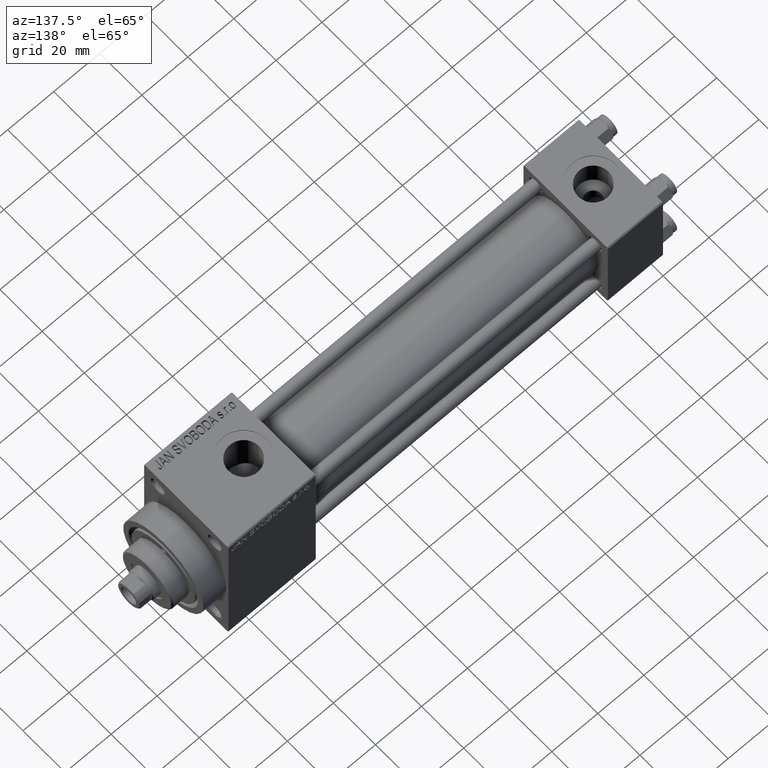
[diagram: clean part render]
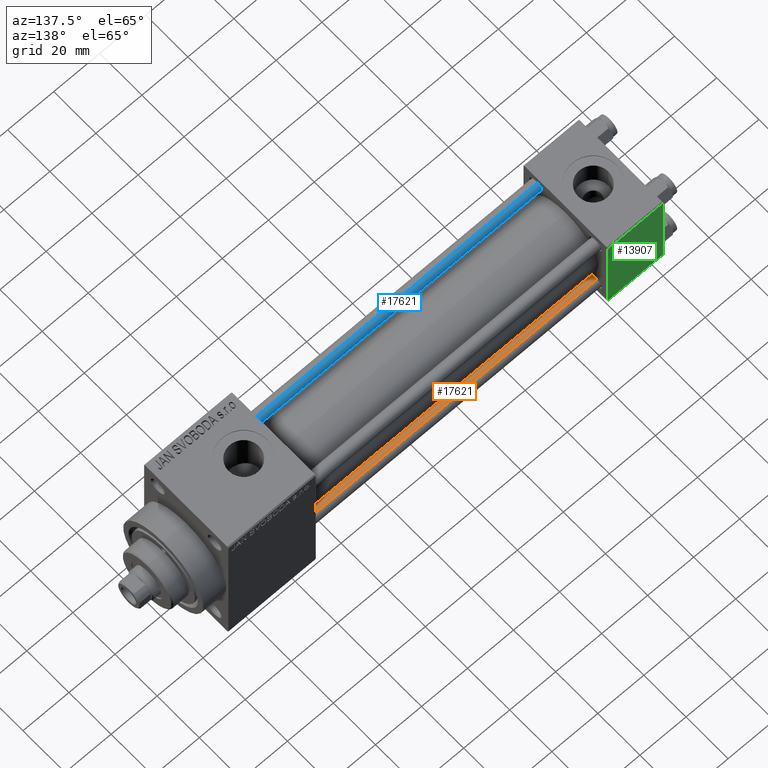
[diagram: same view with three faces highlighted in distinct colors, each labeled with its STEP entity id]
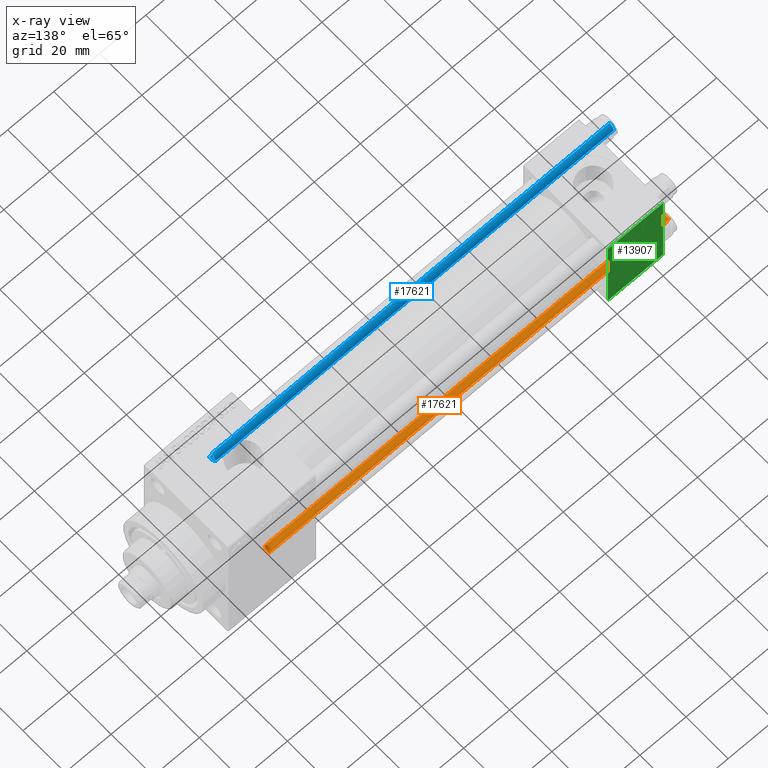
[diagram: x-ray of the same camera — body ghosted, the three highlighted faces saturated]
A machine part, auxiliary view with three faces highlighted in distinct colors.
The next image is the same camera in x-ray (body ghosted, the three faces saturated) — at least one of them is partly hidden behind the body in this view.
Their STEP definitions:

[orange] entity #17621 — the highlighted cylindrical surface (edge-blend (fillet) strip) has radius 2.5 mm, axis along (1, -0, 0).
#1886 = AXIS2_PLACEMENT_3D ( 'NONE', #28125, #10183, #2770 ) ;
#2770 = DIRECTION ( 'NONE',  ( -1.000000000000000000, 0.000000000000000000, 0.000000000000000000 ) ) ;
#3983 = EDGE_CURVE ( 'NONE', #21928, #24024, #14518, .T. ) ;
#7060 = FACE_OUTER_BOUND ( 'NONE', #7411, .T. ) ;
#7118 = CARTESIAN_POINT ( 'NONE',  ( 2.500000000000000000, 3.061616997868383141E-16, 174.0000000000000000 ) ) ;
#7411 = EDGE_LOOP ( 'NONE', ( #35165, #41956, #31544, #12046 ) ) ;
#9742 = VERTEX_POINT ( 'NONE', #47216 ) ;
#10094 = DIRECTION ( 'NONE',  ( -0.000000000000000000, -0.000000000000000000, 1.000000000000000000 ) ) ;
#10183 = DIRECTION ( 'NONE',  ( -0.000000000000000000, -0.000000000000000000, -1.000000000000000000 ) ) ;
#10185 = LINE ( 'NONE', #24777, #23042 ) ;
#12046 = ORIENTED_EDGE ( 'NONE', *, *, #38184, .T. ) ;
#12241 = CARTESIAN_POINT ( 'NONE',  ( 2.500000000000000000, 3.061616997868383141E-16, 173.5000000000000000 ) ) ;
#13673 = CARTESIAN_POINT ( 'NONE',  ( 0.000000000000000000, 0.000000000000000000, 0.5000000000000281997 ) ) ;
#13821 = DIRECTION ( 'NONE',  ( -0.000000000000000000, -0.000000000000000000, -1.000000000000000000 ) ) ;
#14518 = LINE ( 'NONE', #7118, #16044 ) ;
#15434 = DIRECTION ( 'NONE',  ( 1.000000000000000000, 0.000000000000000000, 0.000000000000000000 ) ) ;
#16044 = VECTOR ( 'NONE', #13821, 1000.000000000000000 ) ;
#17621 = ADVANCED_FACE ( 'NONE', ( #7060 ), #21662, .T. ) ;
#21662 = CYLINDRICAL_SURFACE ( 'NONE', #1886, 2.500000000000000000 ) ;
#21928 = VERTEX_POINT ( 'NONE', #12241 ) ;
#22539 = VERTEX_POINT ( 'NONE', #28621 ) ;
#23042 = VECTOR ( 'NONE', #39359, 1000.000000000000000 ) ;
#23546 = DIRECTION ( 'NONE',  ( 0.000000000000000000, 0.000000000000000000, -1.000000000000000000 ) ) ;
#24024 = VERTEX_POINT ( 'NONE', #24243 ) ;
#24243 = CARTESIAN_POINT ( 'NONE',  ( 2.500000000000000000, 3.061616997868383141E-16, 0.5000000000000281997 ) ) ;
#24616 = CIRCLE ( 'NONE', #33014, 2.500000000000000000 ) ;
#24777 = CARTESIAN_POINT ( 'NONE',  ( -2.500000000000000000, 0.000000000000000000, 174.0000000000000000 ) ) ;
#26882 = CIRCLE ( 'NONE', #30705, 2.500000000000000000 ) ;
#28125 = CARTESIAN_POINT ( 'NONE',  ( 0.000000000000000000, 0.000000000000000000, 174.0000000000000000 ) ) ;
#28621 = CARTESIAN_POINT ( 'NONE',  ( -2.500000000000000000, 0.000000000000000000, 0.5000000000000281997 ) ) ;
#30705 = AXIS2_PLACEMENT_3D ( 'NONE', #33618, #23546, #15434 ) ;
#31544 = ORIENTED_EDGE ( 'NONE', *, *, #33615, .T. ) ;
#33014 = AXIS2_PLACEMENT_3D ( 'NONE', #13673, #10094, #45966 ) ;
#33615 = EDGE_CURVE ( 'NONE', #9742, #22539, #10185, .T. ) ;
#33618 = CARTESIAN_POINT ( 'NONE',  ( 0.000000000000000000, 0.000000000000000000, 173.5000000000000000 ) ) ;
#35165 = ORIENTED_EDGE ( 'NONE', *, *, #3983, .F. ) ;
#37777 = EDGE_CURVE ( 'NONE', #21928, #9742, #26882, .T. ) ;
#38184 = EDGE_CURVE ( 'NONE', #22539, #24024, #24616, .T. ) ;
#39359 = DIRECTION ( 'NONE',  ( -0.000000000000000000, -0.000000000000000000, -1.000000000000000000 ) ) ;
#41956 = ORIENTED_EDGE ( 'NONE', *, *, #37777, .T. ) ;
#45966 = DIRECTION ( 'NONE',  ( 1.000000000000000000, 0.000000000000000000, 0.000000000000000000 ) ) ;
#47216 = CARTESIAN_POINT ( 'NONE',  ( -2.500000000000000000, 0.000000000000000000, 173.5000000000000000 ) ) ;

[blue] entity #17621 — the highlighted cylindrical surface (edge-blend (fillet) strip) has radius 2.5 mm, axis along (1, 0, 0).
#1886 = AXIS2_PLACEMENT_3D ( 'NONE', #28125, #10183, #2770 ) ;
#2770 = DIRECTION ( 'NONE',  ( -1.000000000000000000, 0.000000000000000000, 0.000000000000000000 ) ) ;
#3983 = EDGE_CURVE ( 'NONE', #21928, #24024, #14518, .T. ) ;
#7060 = FACE_OUTER_BOUND ( 'NONE', #7411, .T. ) ;
#7118 = CARTESIAN_POINT ( 'NONE',  ( 2.500000000000000000, 3.061616997868383141E-16, 174.0000000000000000 ) ) ;
#7411 = EDGE_LOOP ( 'NONE', ( #35165, #41956, #31544, #12046 ) ) ;
#9742 = VERTEX_POINT ( 'NONE', #47216 ) ;
#10094 = DIRECTION ( 'NONE',  ( -0.000000000000000000, -0.000000000000000000, 1.000000000000000000 ) ) ;
#10183 = DIRECTION ( 'NONE',  ( -0.000000000000000000, -0.000000000000000000, -1.000000000000000000 ) ) ;
#10185 = LINE ( 'NONE', #24777, #23042 ) ;
#12046 = ORIENTED_EDGE ( 'NONE', *, *, #38184, .T. ) ;
#12241 = CARTESIAN_POINT ( 'NONE',  ( 2.500000000000000000, 3.061616997868383141E-16, 173.5000000000000000 ) ) ;
#13673 = CARTESIAN_POINT ( 'NONE',  ( 0.000000000000000000, 0.000000000000000000, 0.5000000000000281997 ) ) ;
#13821 = DIRECTION ( 'NONE',  ( -0.000000000000000000, -0.000000000000000000, -1.000000000000000000 ) ) ;
#14518 = LINE ( 'NONE', #7118, #16044 ) ;
#15434 = DIRECTION ( 'NONE',  ( 1.000000000000000000, 0.000000000000000000, 0.000000000000000000 ) ) ;
#16044 = VECTOR ( 'NONE', #13821, 1000.000000000000000 ) ;
#17621 = ADVANCED_FACE ( 'NONE', ( #7060 ), #21662, .T. ) ;
#21662 = CYLINDRICAL_SURFACE ( 'NONE', #1886, 2.500000000000000000 ) ;
#21928 = VERTEX_POINT ( 'NONE', #12241 ) ;
#22539 = VERTEX_POINT ( 'NONE', #28621 ) ;
#23042 = VECTOR ( 'NONE', #39359, 1000.000000000000000 ) ;
#23546 = DIRECTION ( 'NONE',  ( 0.000000000000000000, 0.000000000000000000, -1.000000000000000000 ) ) ;
#24024 = VERTEX_POINT ( 'NONE', #24243 ) ;
#24243 = CARTESIAN_POINT ( 'NONE',  ( 2.500000000000000000, 3.061616997868383141E-16, 0.5000000000000281997 ) ) ;
#24616 = CIRCLE ( 'NONE', #33014, 2.500000000000000000 ) ;
#24777 = CARTESIAN_POINT ( 'NONE',  ( -2.500000000000000000, 0.000000000000000000, 174.0000000000000000 ) ) ;
#26882 = CIRCLE ( 'NONE', #30705, 2.500000000000000000 ) ;
#28125 = CARTESIAN_POINT ( 'NONE',  ( 0.000000000000000000, 0.000000000000000000, 174.0000000000000000 ) ) ;
#28621 = CARTESIAN_POINT ( 'NONE',  ( -2.500000000000000000, 0.000000000000000000, 0.5000000000000281997 ) ) ;
#30705 = AXIS2_PLACEMENT_3D ( 'NONE', #33618, #23546, #15434 ) ;
#31544 = ORIENTED_EDGE ( 'NONE', *, *, #33615, .T. ) ;
#33014 = AXIS2_PLACEMENT_3D ( 'NONE', #13673, #10094, #45966 ) ;
#33615 = EDGE_CURVE ( 'NONE', #9742, #22539, #10185, .T. ) ;
#33618 = CARTESIAN_POINT ( 'NONE',  ( 0.000000000000000000, 0.000000000000000000, 173.5000000000000000 ) ) ;
#35165 = ORIENTED_EDGE ( 'NONE', *, *, #3983, .F. ) ;
#37777 = EDGE_CURVE ( 'NONE', #21928, #9742, #26882, .T. ) ;
#38184 = EDGE_CURVE ( 'NONE', #22539, #24024, #24616, .T. ) ;
#39359 = DIRECTION ( 'NONE',  ( -0.000000000000000000, -0.000000000000000000, -1.000000000000000000 ) ) ;
#41956 = ORIENTED_EDGE ( 'NONE', *, *, #37777, .T. ) ;
#45966 = DIRECTION ( 'NONE',  ( 1.000000000000000000, 0.000000000000000000, 0.000000000000000000 ) ) ;
#47216 = CARTESIAN_POINT ( 'NONE',  ( -2.500000000000000000, 0.000000000000000000, 173.5000000000000000 ) ) ;

[green] entity #13907 — the highlighted planar face has unit normal (0, 1, 0).
#2123 = ORIENTED_EDGE ( 'NONE', *, *, #13381, .T. ) ;
#4384 = ORIENTED_EDGE ( 'NONE', *, *, #31020, .T. ) ;
#5749 = DIRECTION ( 'NONE',  ( 0.000000000000000000, -0.000000000000000000, 1.000000000000000000 ) ) ;
#8088 = EDGE_CURVE ( 'NONE', #34036, #11393, #23552, .T. ) ;
#8340 = CARTESIAN_POINT ( 'NONE',  ( 24.00000000000000000, 20.00000000000000000, 19.49999999999999289 ) ) ;
#8758 = CARTESIAN_POINT ( 'NONE',  ( 24.00000000000000000, 20.00000000000000000, 19.49999999999999289 ) ) ;
#9570 = LINE ( 'NONE', #27753, #45833 ) ;
#11393 = VERTEX_POINT ( 'NONE', #34576 ) ;
#11474 = VECTOR ( 'NONE', #30697, 1000.000000000000000 ) ;
#12684 = DIRECTION ( 'NONE',  ( -1.000000000000000000, 0.000000000000000000, 0.000000000000000000 ) ) ;
#13381 = EDGE_CURVE ( 'NONE', #34036, #35190, #23178, .T. ) ;
#13572 = ORIENTED_EDGE ( 'NONE', *, *, #8088, .F. ) ;
#13907 = ADVANCED_FACE ( 'NONE', ( #16034 ), #23931, .T. ) ;
#16034 = FACE_OUTER_BOUND ( 'NONE', #17144, .T. ) ;
#16091 = CARTESIAN_POINT ( 'NONE',  ( 24.00000000000000000, 20.00000000000000000, 20.00000000000000000 ) ) ;
#16125 = DIRECTION ( 'NONE',  ( 0.000000000000000000, 0.000000000000000000, -1.000000000000000000 ) ) ;
#17144 = EDGE_LOOP ( 'NONE', ( #4384, #29478, #13572, #2123 ) ) ;
#17794 = VECTOR ( 'NONE', #23869, 1000.000000000000000 ) ;
#20164 = LINE ( 'NONE', #16091, #11474 ) ;
#22553 = CARTESIAN_POINT ( 'NONE',  ( 0.000000000000000000, 20.00000000000000000, 19.49999999999999289 ) ) ;
#23178 = LINE ( 'NONE', #8340, #17794 ) ;
#23552 = LINE ( 'NONE', #35508, #28437 ) ;
#23558 = CARTESIAN_POINT ( 'NONE',  ( 24.00000000000000000, 20.00000000000000000, -19.50000000000002132 ) ) ;
#23869 = DIRECTION ( 'NONE',  ( 1.000000000000000000, 0.000000000000000000, 0.000000000000000000 ) ) ;
#23931 = PLANE ( 'NONE',  #43035 ) ;
#27517 = CARTESIAN_POINT ( 'NONE',  ( 24.00000000000000000, 20.00000000000000000, 20.00000000000000000 ) ) ;
#27753 = CARTESIAN_POINT ( 'NONE',  ( 24.00000000000000000, 20.00000000000000000, -19.50000000000002132 ) ) ;
#28437 = VECTOR ( 'NONE', #16125, 1000.000000000000000 ) ;
#29478 = ORIENTED_EDGE ( 'NONE', *, *, #30225, .T. ) ;
#30225 = EDGE_CURVE ( 'NONE', #41789, #11393, #9570, .T. ) ;
#30697 = DIRECTION ( 'NONE',  ( 0.000000000000000000, 0.000000000000000000, -1.000000000000000000 ) ) ;
#31020 = EDGE_CURVE ( 'NONE', #35190, #41789, #20164, .T. ) ;
#34036 = VERTEX_POINT ( 'NONE', #22553 ) ;
#34576 = CARTESIAN_POINT ( 'NONE',  ( 0.000000000000000000, 20.00000000000000000, -19.50000000000002132 ) ) ;
#35190 = VERTEX_POINT ( 'NONE', #8758 ) ;
#35508 = CARTESIAN_POINT ( 'NONE',  ( 0.000000000000000000, 20.00000000000000000, 20.00000000000000000 ) ) ;
#41789 = VERTEX_POINT ( 'NONE', #23558 ) ;
#43035 = AXIS2_PLACEMENT_3D ( 'NONE', #27517, #44984, #5749 ) ;
#44984 = DIRECTION ( 'NONE',  ( -0.000000000000000000, 1.000000000000000000, 0.000000000000000000 ) ) ;
#45833 = VECTOR ( 'NONE', #12684, 1000.000000000000000 ) ;